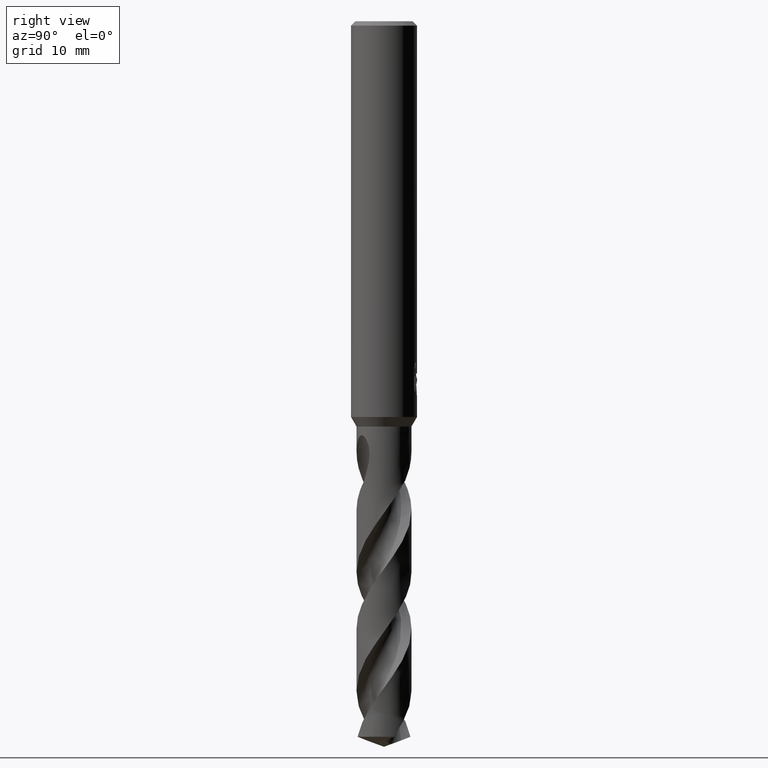
[diagram: clean part render]
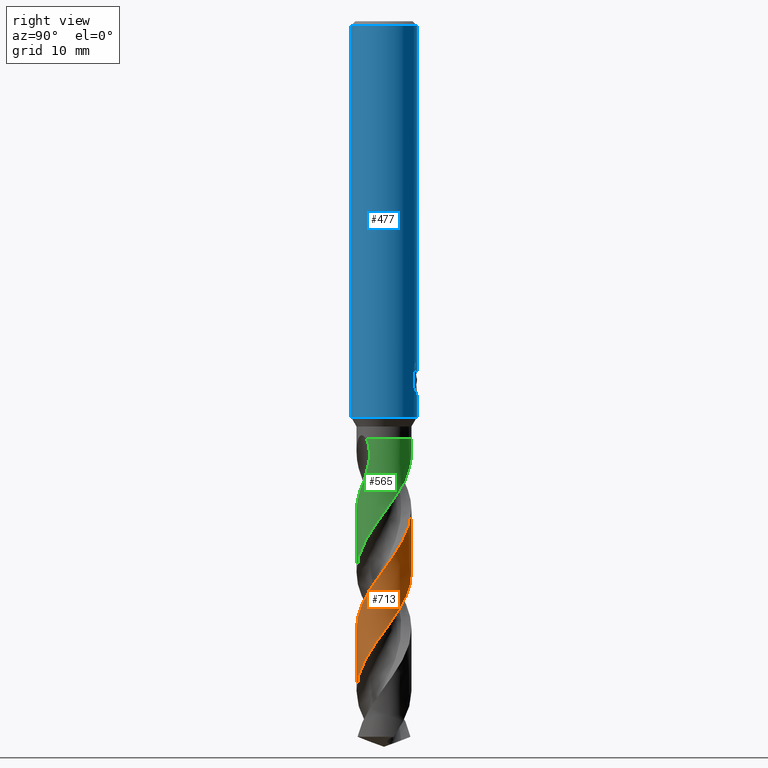
[diagram: same view with three faces highlighted in distinct colors, each labeled with its STEP entity id]
A machine part, right view with three faces highlighted in distinct colors.
Their STEP definitions:

[orange] entity #713 — the highlighted conical surface has half-angle 0 deg.
#307=VERTEX_POINT('',#801);
#373=EDGE_CURVE('',#643,#475,#875,.T.);
#473=VERTEX_POINT('',#985);
#475=VERTEX_POINT('',#987);
#501=EDGE_CURVE('',#473,#475,#1015,.T.);
#513=EDGE_CURVE('',#473,#307,#1028,.T.);
#617=EDGE_CURVE('',#643,#307,#1143,.T.);
#643=VERTEX_POINT('',#1173);
#713=ADVANCED_FACE('',(#1245),#1246,.T.);
#801=CARTESIAN_POINT('',(-4.52282263023623E-014,2.49994476385778,-50.1265623821918));
#875=B_SPLINE_CURVE_WITH_KNOTS('',3,(#2171,#2172,#2173,#2174,#2175,#2176,#2177,#2178,#2179,#2180,#2181,#2182,#2183,#2184,#2185,#2186,#2187,#2188,#2189,#2190,#2191,#2192,#2193,#2194,#2195,#2196,#2197,#2198,#2199,#2200,#2201,#2202,#2203,#2204,#2205,#2206,#2207,#2208,#2209,#2210,#2211,#2212,#2213,#2214,#2215,#2216,#2217,#2218,#2219,#2220,#2221,#2222,#2223,#2224,#2225,#2226,#2227,#2228,#2229,#2230,#2231,#2232,#2233,#2234,#2235,#2236,#2237,#2238,#2239,#2240,#2241,#2242,#2243,#2244,#2245,#2246,#2247,#2248,#2249,#2250,#2251,#2252,#2253,#2254,#2255,#2256),.UNSPECIFIED.,.F.,.F.,(4,2,2,2,2,2,2,2,2,2,2,2,2,2,2,2,2,2,2,2,2,2,2,2,2,2,2,2,2,2,2,2,2,2,2,2,2,2,2,2,2,2,4),(0.0,0.112260864397981,0.184359363803261,0.213399574284535,0.509736657764034,0.611469456130569,0.676074612108671,0.736403610198,0.816753333084748,0.905862270015692,0.994709631882351,1.31016933782621,1.52303416408569,1.74012502638929,1.97225138631104,2.57695872480792,3.17582754790001,5.2809410103534,6.255474968566,6.95390734003384,8.33895150304389,9.04258172192699,9.76890611807947,10.9380614368724,11.458870248475,12.329443972972,13.7401059421701,14.4385569374902,15.8239700963502,16.5270780909587,17.2530806224029,18.3912785393214,19.1171676654268,20.2366143270635,20.8150936857998,21.6680457080309,23.0795614502067,23.7767668551512,25.0346132842892,25.9822451545084,26.6874134462999,27.7659504420145,28.8549960331307),.UNSPECIFIED.);
#985=CARTESIAN_POINT('',(1.49251476546425E-012,-2.4999846378401,-60.9284538668784));
#987=CARTESIAN_POINT('',(5.94388839914862E-014,-2.49996362512359,-55.2360933263023));
#1015=LINE('',#2847,#2848);
#1028=B_SPLINE_CURVE_WITH_KNOTS('',3,(#2877,#2878,#2879,#2880,#2881,#2882,#2883,#2884,#2885,#2886,#2887,#2888,#2889,#2890,#2891,#2892,#2893,#2894,#2895,#2896,#2897,#2898,#2899,#2900,#2901,#2902,#2903,#2904,#2905,#2906,#2907,#2908,#2909,#2910,#2911,#2912,#2913,#2914,#2915,#2916,#2917,#2918,#2919,#2920,#2921,#2922,#2923,#2924,#2925,#2926,#2927,#2928,#2929,#2930,#2931,#2932,#2933,#2934,#2935,#2936,#2937,#2938,#2939,#2940,#2941,#2942,#2943,#2944,#2945,#2946,#2947,#2948,#2949,#2950,#2951,#2952,#2953,#2954,#2955,#2956,#2957,#2958),.UNSPECIFIED.,.F.,.F.,(4,2,2,2,2,2,2,2,2,2,2,2,2,2,2,2,2,2,2,2,2,2,2,2,2,2,2,2,2,2,2,2,2,2,2,2,2,2,2,2,4),(0.0,0.705339197067454,0.793382321139927,2.25138278752314,3.00462328712798,4.43626943265148,4.65154013104783,5.90009963176698,6.6671058830871,7.53581158334608,7.96590050155425,8.69394951695833,10.0801426134938,10.1881721412805,11.6492357720889,12.1945071413989,13.4916434380483,14.0841886344595,15.3916855201915,15.9972169755421,17.3497751212634,18.1393860448176,18.8605143900051,19.3125841918353,20.1058236514083,20.8125461307724,22.2865912593847,23.1269554959695,23.5124698716947,25.8935172841633,26.4819857242191,26.9585591441111,27.5557320804792,27.9155669110931,28.0952590369785,28.1166080844096,28.1413705103888,28.1632492416796,28.1908979290136,28.2479506763335,28.3435305855534),.UNSPECIFIED.);
#1143=LINE('',#3881,#3882);
#1173=CARTESIAN_POINT('',(-4.50061804107274E-014,2.49992374959581,-44.4337831787576));
#1245=FACE_OUTER_BOUND('',#5045,.T.);
#1246=CONICAL_SURFACE('',#5046,2.49995,3.69138890024025E-006);
#2171=CARTESIAN_POINT('',(-1.73763251753517,1.79727657886597,-41.785));
#2172=CARTESIAN_POINT('',(-1.72252333531716,1.81188450975389,-41.8159612488735));
#2173=CARTESIAN_POINT('',(-1.70718617085513,1.82634501856555,-41.8468795146329));
#2174=CARTESIAN_POINT('',(-1.68154298267998,1.84991098373826,-41.897580907247));
#2175=CARTESIAN_POINT('',(-1.67141317876823,1.85906925310798,-41.9173653165301));
#2176=CARTESIAN_POINT('',(-1.65703232954043,1.87185662163627,-41.9450887434018));
#2177=CARTESIAN_POINT('',(-1.6528851984722,1.87551971778129,-41.9530420790741));
#2178=CARTESIAN_POINT('',(-1.60620232636707,1.91647797613241,-42.0420979239649));
#2179=CARTESIAN_POINT('',(-1.56246716797805,1.95234792771077,-42.1210954415223));
#2180=CARTESIAN_POINT('',(-1.50028167347057,1.99978310687406,-42.2279758830858));
#2181=CARTESIAN_POINT('',(-1.48419571490945,2.01175231020023,-42.2551787188422));
#2182=CARTESIAN_POINT('',(-1.45753670999042,2.03109077354861,-42.2996346269278));
#2183=CARTESIAN_POINT('',(-1.44710899817522,2.03853378537185,-42.3168713218699));
#2184=CARTESIAN_POINT('',(-1.42679459870447,2.05279836943604,-42.3501934975608));
#2185=CARTESIAN_POINT('',(-1.41692666331163,2.05962221572898,-42.366265121581));
#2186=CARTESIAN_POINT('',(-1.39377738133427,2.07538472772317,-42.4037411168876));
#2187=CARTESIAN_POINT('',(-1.38046563645428,2.08426304220794,-42.4251198296934));
#2188=CARTESIAN_POINT('',(-1.35220723015523,2.1027204110797,-42.4702394281732));
#2189=CARTESIAN_POINT('',(-1.33726269701465,2.11225587310889,-42.4939484197089));
#2190=CARTESIAN_POINT('',(-1.3072564298652,2.13095660652669,-42.5413850381339));
#2191=CARTESIAN_POINT('',(-1.29232449782342,2.14004504860097,-42.5649268475504));
#2192=CARTESIAN_POINT('',(-1.22332005298629,2.18105409025878,-42.6736537518755));
#2193=CARTESIAN_POINT('',(-1.1686119397487,2.21082703703966,-42.7594024169131));
#2194=CARTESIAN_POINT('',(-1.07590408053925,2.25693625153703,-42.9026979907032));
#2195=CARTESIAN_POINT('',(-1.03811787139033,2.27456344180679,-42.9605691828696));
#2196=CARTESIAN_POINT('',(-0.960985511359174,2.308225764917,-43.0773163560093));
#2197=CARTESIAN_POINT('',(-0.921551483904369,2.32425367032093,-43.1362986554134));
#2198=CARTESIAN_POINT('',(-0.839004025607875,2.35536562401067,-43.2581045465728));
#2199=CARTESIAN_POINT('',(-0.796090888532881,2.37021423757732,-43.3204323116492));
#2200=CARTESIAN_POINT('',(-0.639376534975514,2.41969056288015,-43.5458807467084));
#2201=CARTESIAN_POINT('',(-0.523769726785364,2.4473157517187,-43.7080488747472));
#2202=CARTESIAN_POINT('',(-0.290712061321603,2.48574152964552,-44.0324353282882));
#2203=CARTESIAN_POINT('',(-0.173728399406881,2.49663090714221,-44.1943179046256));
#2204=CARTESIAN_POINT('',(0.355258969957849,2.50860697346788,-44.9235593870129));
#2205=CARTESIAN_POINT('',(0.76351808274427,2.41600035035728,-45.4815312945286));
#2206=CARTESIAN_POINT('',(1.30197299347946,2.1426697811221,-46.31106381553));
#2207=CARTESIAN_POINT('',(1.46172325610689,2.03700617845406,-46.573145334837));
#2208=CARTESIAN_POINT('',(1.71242825474656,1.82645486217131,-47.0241990339206));
#2209=CARTESIAN_POINT('',(1.80979503284007,1.73004530276872,-47.2121272242569));
#2210=CARTESIAN_POINT('',(2.07544703988881,1.41982938343384,-47.7733523730699));
#2211=CARTESIAN_POINT('',(2.21720066386726,1.18628887309635,-48.1441944867819));
#2212=CARTESIAN_POINT('',(2.37014142484875,0.806917128396147,-48.7071592389239));
#2213=CARTESIAN_POINT('',(2.41103927264376,0.674999637538866,-48.8963335641817));
#2214=CARTESIAN_POINT('',(2.47163657854173,0.401250805539074,-49.2814895665421));
#2215=CARTESIAN_POINT('',(2.49045213073503,0.259951390782246,-49.4767087971323));
#2216=CARTESIAN_POINT('',(2.50795736213588,-0.110676779446218,-49.9877567146545));
#2217=CARTESIAN_POINT('',(2.48731984448235,-0.339900941854813,-50.3015001586411));
#2218=CARTESIAN_POINT('',(2.41265118995953,-0.662782316827547,-50.7567138613136));
#2219=CARTESIAN_POINT('',(2.38358285035791,-0.760708160842329,-50.8967340635618));
#2220=CARTESIAN_POINT('',(2.29020920139356,-1.01674147264556,-51.2718526106045));
#2221=CARTESIAN_POINT('',(2.21552212654012,-1.17061022199388,-51.506378327884));
#2222=CARTESIAN_POINT('',(1.98019957447149,-1.55081325593043,-52.1212928143052));
#2223=CARTESIAN_POINT('',(1.79673707470065,-1.76006050820629,-52.4982066654968));
#2224=CARTESIAN_POINT('',(1.4770632193138,-2.02157595960438,-53.0669998680844));
#2225=CARTESIAN_POINT('',(1.36419782506063,-2.09940615047098,-53.2550031617408));
#2226=CARTESIAN_POINT('',(1.00986821521097,-2.30299156464392,-53.8165632951909));
#2227=CARTESIAN_POINT('',(0.75390861783778,-2.39897411173886,-54.1877323401761));
#2228=CARTESIAN_POINT('',(0.352637911157766,-2.47879544892285,-54.7508913923925));
#2229=CARTESIAN_POINT('',(0.215473377630436,-2.49447489579981,-54.9400033942706));
#2230=CARTESIAN_POINT('',(-0.0647164143704662,-2.50318029125977,-55.3250706851135));
#2231=CARTESIAN_POINT('',(-0.207048247494991,-2.49542970968005,-55.5202326259576));
#2232=CARTESIAN_POINT('',(-0.56858039697824,-2.44463391380991,-56.0230316144241));
#2233=CARTESIAN_POINT('',(-0.784379149224132,-2.38420746294383,-56.3287322025186));
#2234=CARTESIAN_POINT('',(-1.12021046051182,-2.23947641372666,-56.8310641184024));
#2235=CARTESIAN_POINT('',(-1.24581739234765,-2.17209685378461,-57.026199561421));
#2236=CARTESIAN_POINT('',(-1.54863283957287,-1.97475894813139,-57.5239715787508));
#2237=CARTESIAN_POINT('',(-1.71594996590589,-1.83128955046827,-57.8247579501289));
#2238=CARTESIAN_POINT('',(-1.93817520512301,-1.58310863870926,-58.2823826923513));
#2239=CARTESIAN_POINT('',(-2.00798844882317,-1.49355720431913,-58.4379139467633));
#2240=CARTESIAN_POINT('',(-2.16505013784096,-1.26110534007432,-58.8240279284813));
#2241=CARTESIAN_POINT('',(-2.24454505612968,-1.1135009377857,-59.0539622265998));
#2242=CARTESIAN_POINT('',(-2.41489958907924,-0.703405976010952,-59.6647036802505));
#2243=CARTESIAN_POINT('',(-2.4778493408574,-0.432023431613768,-60.0418923222221));
#2244=CARTESIAN_POINT('',(-2.503634884442,-0.0196933934571156,-60.6109144041946));
#2245=CARTESIAN_POINT('',(-2.50097886871375,0.117197858275783,-60.7987195120287));
#2246=CARTESIAN_POINT('',(-2.46212169587073,0.498783927950691,-61.3258934336175));
#2247=CARTESIAN_POINT('',(-2.40091599944267,0.739127207484304,-61.663113178621));
#2248=CARTESIAN_POINT('',(-2.23381939159023,1.13775665563353,-62.2581594994216));
#2249=CARTESIAN_POINT('',(-2.14310945923877,1.3006262674841,-62.5127378027975));
#2250=CARTESIAN_POINT('',(-1.95469301279321,1.56470195363854,-62.958274586715));
#2251=CARTESIAN_POINT('',(-1.8651832026667,1.67036731294681,-63.1480903354741));
#2252=CARTESIAN_POINT('',(-1.61814650352558,1.91733878379423,-63.6295195013268));
#2253=CARTESIAN_POINT('',(-1.45028454623987,2.04730432859257,-63.9195889522927));
#2254=CARTESIAN_POINT('',(-1.08365734352574,2.26304112295259,-64.5040157661129));
#2255=CARTESIAN_POINT('',(-0.88633245956452,2.34735393691689,-64.7963888538523));
#2256=CARTESIAN_POINT('',(-0.680722000651791,2.40553893292721,-65.0900744143345));
#2847=CARTESIAN_POINT('',(3.05947284464402E-016,-2.49995,-51.5450372071672));
#2848=VECTOR('',#5477,1.0);
#2877=CARTESIAN_POINT('',(-2.33886570378176,-0.883010316855671,-65.0900744143346));
#2878=CARTESIAN_POINT('',(-2.29018651941373,-1.01194688165468,-64.899591205298));
#2879=CARTESIAN_POINT('',(-2.23092460497212,-1.13665062971624,-64.7100951296172));
#2880=CARTESIAN_POINT('',(-2.1530246992714,-1.27073593403021,-64.4959070600355));
#2881=CARTESIAN_POINT('',(-2.14422075936886,-1.28553609920864,-64.4721112545271));
#2882=CARTESIAN_POINT('',(-1.98678778498846,-1.54406599633667,-64.0543117839365));
#2883=CARTESIAN_POINT('',(-1.7976549868061,-1.76071742978131,-63.6691206233433));
#2884=CARTESIAN_POINT('',(-1.46106991761269,-2.03397333262025,-63.0729881102762));
#2885=CARTESIAN_POINT('',(-1.33871349423607,-2.11648751129627,-62.8683680607111));
#2886=CARTESIAN_POINT('',(-0.964657660492261,-2.32332210861559,-62.2793324202098));
#2887=CARTESIAN_POINT('',(-0.698973713689662,-2.41647371340849,-61.9016577222645));
#2888=CARTESIAN_POINT('',(-0.382407781231478,-2.47092292387326,-61.4573907860452));
#2889=CARTESIAN_POINT('',(-0.340868195840411,-2.47699755069347,-61.3992154232817));
#2890=CARTESIAN_POINT('',(-0.056348433135587,-2.51127396344896,-61.0033000692642));
#2891=CARTESIAN_POINT('',(0.189607553031624,-2.50481686222219,-60.6711730976838));
#2892=CARTESIAN_POINT('',(0.579560574119715,-2.43653722360843,-60.1276139254984));
#2893=CARTESIAN_POINT('',(0.72494026829224,-2.39726246546098,-59.9193957858108));
#2894=CARTESIAN_POINT('',(1.02504655634025,-2.28649069645021,-59.4782941951181));
#2895=CARTESIAN_POINT('',(1.17828835600058,-2.21147233878619,-59.2460040832562));
#2896=CARTESIAN_POINT('',(1.39462177848924,-2.07654618220098,-58.8966113737013));
#2897=CARTESIAN_POINT('',(1.46383890757014,-2.02833508442498,-58.7810628734268));
#2898=CARTESIAN_POINT('',(1.64305173694417,-1.88959207455748,-58.4689934029809));
#2899=CARTESIAN_POINT('',(1.7480041829164,-1.79295929273067,-58.271490477962));
#2900=CARTESIAN_POINT('',(2.02765337381636,-1.48736283540185,-57.7016448403498));
#2901=CARTESIAN_POINT('',(2.17675215974187,-1.2588531611843,-57.3352544267904));
#2902=CARTESIAN_POINT('',(2.29468417630767,-0.992329559019766,-56.9318510739895));
#2903=CARTESIAN_POINT('',(2.30295054965085,-0.97299133897287,-56.9026920016989));
#2904=CARTESIAN_POINT('',(2.41974444841605,-0.68991523508859,-56.4788123552638));
#2905=CARTESIAN_POINT('',(2.4827461711198,-0.409412690495787,-56.0928565758128));
#2906=CARTESIAN_POINT('',(2.50218422872534,-0.0171166163841849,-55.5527197643311));
#2907=CARTESIAN_POINT('',(2.50061848827988,0.0894609548753868,-55.4051585521973));
#2908=CARTESIAN_POINT('',(2.47258558300501,0.447144106676024,-54.909605765415));
#2909=CARTESIAN_POINT('',(2.4148013680497,0.694737030915162,-54.5668861005288));
#2910=CARTESIAN_POINT('',(2.27760108182114,1.03716435036888,-54.0599008925659));
#2911=CARTESIAN_POINT('',(2.22728008054499,1.14115918632063,-53.9000618284899));
#2912=CARTESIAN_POINT('',(2.04420851600865,1.46130061996071,-53.390712037741));
#2913=CARTESIAN_POINT('',(1.88533901313571,1.66131855510462,-53.0464639324678));
#2914=CARTESIAN_POINT('',(1.61227982878016,1.91421004200908,-52.5348963107895));
#2915=CARTESIAN_POINT('',(1.52051473189964,1.9878476797528,-52.3720603472176));
#2916=CARTESIAN_POINT('',(1.20901208157233,2.20376702993984,-51.8487820122252));
#2917=CARTESIAN_POINT('',(0.971688557130232,2.31825566416415,-51.4941662036529));
#2918=CARTESIAN_POINT('',(0.574074081387713,2.43795087913269,-50.9228469333753));
#2919=CARTESIAN_POINT('',(0.423951345468637,2.46849021318531,-50.7108135997946));
#2920=CARTESIAN_POINT('',(0.132737446093259,2.50033233182608,-50.3078546606294));
#2921=CARTESIAN_POINT('',(-0.00744624843985667,2.50385953433475,-50.1166243972868));
#2922=CARTESIAN_POINT('',(-0.235072303680106,2.49041743578429,-49.804154112705));
#2923=CARTESIAN_POINT('',(-0.322300937021889,2.48062603910392,-49.6839194969346));
#2924=CARTESIAN_POINT('',(-0.560271952156856,2.4411909636006,-49.3516434524049));
#2925=CARTESIAN_POINT('',(-0.709375224730758,2.40213008065173,-49.1384821213758));
#2926=CARTESIAN_POINT('',(-0.98317152774021,2.30258834019788,-48.7380818490494));
#2927=CARTESIAN_POINT('',(-1.10817670215267,2.24511367155772,-48.5504571866369));
#2928=CARTESIAN_POINT('',(-1.4776600538367,2.0367646061557,-47.9688885383383));
#2929=CARTESIAN_POINT('',(-1.70122474260381,1.85412109082809,-47.5737327089783));
#2930=CARTESIAN_POINT('',(-1.99616335626811,1.51384661083037,-46.9566524289922));
#2931=CARTESIAN_POINT('',(-2.09065772907504,1.38033475722806,-46.7341315470007));
#2932=CARTESIAN_POINT('',(-2.20836769235021,1.17403016729757,-46.4065933733178));
#2933=CARTESIAN_POINT('',(-2.24235575534413,1.10771172241147,-46.3032037168182));
#2934=CARTESIAN_POINT('',(-2.46440497019878,0.622373707279598,-45.5649438217405));
#2935=CARTESIAN_POINT('',(-2.53689484101531,0.15942215533147,-44.9506343893688));
#2936=CARTESIAN_POINT('',(-2.46865486738844,-0.410223194938036,-44.1590448383229));
#2937=CARTESIAN_POINT('',(-2.44753224229699,-0.521604767257759,-44.0012674652668));
#2938=CARTESIAN_POINT('',(-2.39566460204549,-0.720306041270175,-43.7181079108659));
#2939=CARTESIAN_POINT('',(-2.367409825996,-0.808501262630983,-43.5917896803095));
#2940=CARTESIAN_POINT('',(-2.2921215634324,-1.00470770934608,-43.308547468957));
#2941=CARTESIAN_POINT('',(-2.24349532738679,-1.10898136845446,-43.1578285819941));
#2942=CARTESIAN_POINT('',(-2.15326583726819,-1.27198428116621,-42.8993481075791));
#2943=CARTESIAN_POINT('',(-2.1175666436352,-1.33039309085748,-42.8017300139555));
#2944=CARTESIAN_POINT('',(-2.06214467795192,-1.41359606396385,-42.6525047179898));
#2945=CARTESIAN_POINT('',(-2.04345011854873,-1.44046235586593,-42.6025385631179));
#2946=CARTESIAN_POINT('',(-2.02233273510932,-1.46961519980199,-42.5461035415484));
#2947=CARTESIAN_POINT('',(-2.01551642420652,-1.47903259207708,-42.5277380610302));
#2948=CARTESIAN_POINT('',(-1.99471950686108,-1.5069926528753,-42.4744216398202));
#2949=CARTESIAN_POINT('',(-1.98318630155062,-1.52214706326465,-42.4460597634404));
#2950=CARTESIAN_POINT('',(-1.96067864081638,-1.55100453566303,-42.3930469474543));
#2951=CARTESIAN_POINT('',(-1.94981519695124,-1.56464560566354,-42.3683950926759));
#2952=CARTESIAN_POINT('',(-1.92446653391734,-1.59577896060922,-42.3130159374346));
#2953=CARTESIAN_POINT('',(-1.90981001707499,-1.61330353828892,-42.2824627816051));
#2954=CARTESIAN_POINT('',(-1.86321241132956,-1.66743255269772,-42.1898301555769));
#2955=CARTESIAN_POINT('',(-1.82964914944576,-1.7043004560509,-42.1291412409542));
#2956=CARTESIAN_POINT('',(-1.73317511116033,-1.80366253559055,-41.9703392436052));
#2957=CARTESIAN_POINT('',(-1.66656418716018,-1.86580910510559,-41.8759866470075));
#2958=CARTESIAN_POINT('',(-1.59301279645432,-1.9266240155434,-41.785));
#3881=CARTESIAN_POINT('',(-3.06343646383248E-016,2.49995,-51.5450372071672));
#3882=VECTOR('',#5645,1.0);
#5045=EDGE_LOOP('',(#5732,#5733,#5734,#5735));
#5046=AXIS2_PLACEMENT_3D('',#5736,#5737,#5738);
#5477=DIRECTION('',(-4.52049830165335E-022,3.69138890023187E-006,0.999999999993187));
#5645=DIRECTION('',(-4.52049830165335E-022,3.69138890023187E-006,-0.999999999993187));
#5732=ORIENTED_EDGE('',*,*,#617,.F.);
#5733=ORIENTED_EDGE('',*,*,#373,.T.);
#5734=ORIENTED_EDGE('',*,*,#501,.F.);
#5735=ORIENTED_EDGE('',*,*,#513,.T.);
#5736=CARTESIAN_POINT('',(0.0,0.0,-51.5450372071672));
#5737=DIRECTION('',(0.0,-0.0,-1.0));
#5738=DIRECTION('',(0.0,1.0,0.0));

[blue] entity #477 — the highlighted cylindrical surface (edge-blend (fillet) strip) has radius 3 mm, axis along (-0, -0, 1).
#287=VERTEX_POINT('',#779);
#299=EDGE_CURVE('',#485,#301,#793,.T.);
#301=VERTEX_POINT('',#795);
#327=VERTEX_POINT('',#822);
#377=VERTEX_POINT('',#879);
#381=VERTEX_POINT('',#884);
#385=EDGE_CURVE('',#449,#401,#888,.T.);
#401=VERTEX_POINT('',#906);
#405=EDGE_CURVE('',#717,#515,#910,.T.);
#449=VERTEX_POINT('',#958);
#451=EDGE_CURVE('',#287,#717,#960,.T.);
#463=EDGE_CURVE('',#377,#301,#974,.T.);
#477=ADVANCED_FACE('',(#989),#990,.T.);
#485=VERTEX_POINT('',#998);
#515=VERTEX_POINT('',#1030);
#531=EDGE_CURVE('',#687,#485,#1048,.T.);
#557=VERTEX_POINT('',#1075);
#573=EDGE_CURVE('',#381,#287,#1093,.T.);
#595=EDGE_CURVE('',#377,#401,#1118,.T.);
#601=EDGE_CURVE('',#557,#381,#1125,.T.);
#645=EDGE_CURVE('',#515,#687,#1175,.T.);
#685=EDGE_CURVE('',#327,#449,#1217,.T.);
#687=VERTEX_POINT('',#1219);
#691=EDGE_CURVE('',#557,#327,#1223,.T.);
#717=VERTEX_POINT('',#1250);
#779=CARTESIAN_POINT('',(0.873560781758957,2.86999852971612,-32.3198931596091));
#793=B_SPLINE_CURVE_WITH_KNOTS('',3,(#1627,#1628,#1629,#1630,#1631,#1632,#1633,#1634,#1635,#1636,#1637,#1638,#1639,#1640,#1641,#1642,#1643,#1644,#1645,#1646,#1647,#1648,#1649,#1650,#1651,#1652,#1653),.UNSPECIFIED.,.F.,.F.,(4,2,3,2,2,2,2,2,2,2,2,2,4),(-0.54422824842136,-0.27211412421068,0.0,0.272114124210678,0.544228248421357,0.817906359646673,1.09158447087199,1.36255924571499,1.63353402055798,1.90530456554772,2.17707511053746,2.4488456555272,2.72061620051693),.UNSPECIFIED.);
#795=CARTESIAN_POINT('',(-1.20768269592175E-015,3.0,-32.0232688117743));
#822=CARTESIAN_POINT('',(0.0,3.0,-36.0));
#879=CARTESIAN_POINT('',(0.0,3.0,-0.399999999999999));
#884=CARTESIAN_POINT('',(0.29010312703583,2.98594041730307,-33.9998328990228));
#888=LINE('',#2357,#2358);
#906=CARTESIAN_POINT('',(3.67381906146713E-016,-3.0,-0.399999999999999));
#910=B_SPLINE_CURVE_WITH_KNOTS('',3,(#2400,#2401,#2402,#2403,#2404,#2405,#2406,#2407),.UNSPECIFIED.,.F.,.F.,(4,2,2,4),(8.17446522132897,8.48751487521068,8.80056452909238,9.43014514523744),.UNSPECIFIED.);
#958=CARTESIAN_POINT('',(3.67381906146713E-016,-3.0,-36.0));
#960=LINE('',#2668,#2669);
#974=LINE('',#2694,#2695);
#989=FACE_OUTER_BOUND('',#2715,.T.);
#990=CYLINDRICAL_SURFACE('',#2716,3.0);
#998=CARTESIAN_POINT('',(0.799431726384364,2.89152363207533,-31.000000276873));
#1030=CARTESIAN_POINT('',(1.33721006514658,2.68549236485056,-33.2901657003257));
#1048=B_SPLINE_CURVE_WITH_KNOTS('',3,(#2984,#2985,#2986,#2987,#2988,#2989,#2990,#2991),.UNSPECIFIED.,.F.,.F.,(4,2,2,4),(0.629580638580865,1.25916127716173,1.57221094126725,1.88526060537277),.UNSPECIFIED.);
#1075=CARTESIAN_POINT('',(-2.46407913303377E-016,3.0,-34.0310253601033));
#1093=ELLIPSE('',#3095,9.14398372010932,3.0);
#1118=CIRCLE('',#3834,3.0);
#1125=B_SPLINE_CURVE_WITH_KNOTS('',3,(#3843,#3844,#3845,#3846,#3847,#3848,#3849,#3850,#3851,#3852,#3853,#3854,#3855,#3856,#3857,#3858),.UNSPECIFIED.,.F.,.F.,(4,2,2,2,2,2,2,4),(5.66023402257373,6.29060333517104,6.60504483258975,6.91948633000846,7.23392782742717,7.54836932484587,7.86141901111221,8.17446869737855),.UNSPECIFIED.);
#1175=LINE('',#4043,#4044);
#1217=CIRCLE('',#4887,3.0);
#1219=CARTESIAN_POINT('',(1.33721006514658,2.68549236485057,-31.5150484364821));
#1223=LINE('',#4894,#4895);
#1250=CARTESIAN_POINT('',(0.873560781758956,2.86999852971612,-33.7587351791531));
#1627=CARTESIAN_POINT('',(0.665621182276714,2.92522622060321,-30.8140957881762));
#1628=CARTESIAN_POINT('',(0.728850563417096,2.91083867849353,-30.877518087557));
#1629=CARTESIAN_POINT('',(0.783900459387161,2.89602337967411,-30.9578702196133));
#1630=CARTESIAN_POINT('',(0.857188692916628,2.87518328740958,-31.1345580124299));
#1631=CARTESIAN_POINT('',(0.875400981188567,2.86943777108584,-31.2309373045166));
#1632=CARTESIAN_POINT('',(0.875400981188567,2.86943777108584,-31.3216420125868));
#1633=CARTESIAN_POINT('',(0.875400981188567,2.86943777108584,-31.412346720657));
#1634=CARTESIAN_POINT('',(0.857188692916629,2.87518328740958,-31.5087260127437));
#1635=CARTESIAN_POINT('',(0.783900459387161,2.89602337967411,-31.6854138055602));
#1636=CARTESIAN_POINT('',(0.728850563417096,2.91083867849353,-31.7657659376165));
#1637=CARTESIAN_POINT('',(0.60202838769231,2.93969645569731,-31.8929750586276));
#1638=CARTESIAN_POINT('',(0.5214778595293,2.95568533572518,-31.9483797636259));
#1639=CARTESIAN_POINT('',(0.34429909105015,2.98152194310932,-32.0221641076746));
#1640=CARTESIAN_POINT('',(0.247628172090375,2.99115403786358,-32.0405166027747));
#1641=CARTESIAN_POINT('',(0.0663244946631877,3.00062654348629,-32.0405166027747));
#1642=CARTESIAN_POINT('',(-0.0299285908853379,3.00115720326599,-32.0224875186921));
#1643=CARTESIAN_POINT('',(-0.206881310600538,2.99416773126077,-31.949244373347));
#1644=CARTESIAN_POINT('',(-0.287593937381961,2.98687212067831,-31.8940404490632));
#1645=CARTESIAN_POINT('',(-0.415200117492864,2.97182576996222,-31.7666805419979));
#1646=CARTESIAN_POINT('',(-0.470604049431396,2.96309385107775,-31.6859121102136));
#1647=CARTESIAN_POINT('',(-0.544183869965539,2.95046729924835,-31.5086992019516));
#1648=CARTESIAN_POINT('',(-0.562348199187247,2.94682278104247,-31.41223219425));
#1649=CARTESIAN_POINT('',(-0.562348199187247,2.94682278104247,-31.2310518309235));
#1650=CARTESIAN_POINT('',(-0.54418386996554,2.95046729924835,-31.134584823222));
#1651=CARTESIAN_POINT('',(-0.4706040494314,2.96309385107775,-30.95737191496));
#1652=CARTESIAN_POINT('',(-0.415200117492863,2.97182576996222,-30.8766034831756));
#1653=CARTESIAN_POINT('',(-0.351303479704285,2.97935997575782,-30.812830162452));
#2357=CARTESIAN_POINT('',(3.67381906146713E-016,-3.0,-18.2));
#2358=VECTOR('',#5332,1.0);
#2400=CARTESIAN_POINT('',(0.600330703923335,2.93932016730517,-33.9050364278969));
#2401=CARTESIAN_POINT('',(0.700343038443484,2.91889351228921,-33.8631861412044));
#2402=CARTESIAN_POINT('',(0.795685584213131,2.8940165604303,-33.8114119954011));
#2403=CARTESIAN_POINT('',(0.971352589628262,2.83988055167306,-33.692706383359));
#2404=CARTESIAN_POINT('',(1.0516835476539,2.81066216129401,-33.6257659914415));
#2405=CARTESIAN_POINT('',(1.26543925920527,2.72440179743877,-33.4122346680481));
#2406=CARTESIAN_POINT('',(1.3899740959159,2.66030349847411,-33.2319488826214));
#2407=CARTESIAN_POINT('',(1.47371594109741,2.61307507066968,-33.0321377817991));
#2668=CARTESIAN_POINT('',(0.873560781758957,2.86999852971612,-33.0393141693811));
#2669=VECTOR('',#5401,1.0);
#2694=CARTESIAN_POINT('',(-3.67381906146713E-016,3.0,-18.2));
#2695=VECTOR('',#5424,1.0);
#2715=EDGE_LOOP('',(#5445,#5446,#5447,#5448,#5449,#5450,#5451,#5452,#5453,#5454,#5455,#5456));
#2716=AXIS2_PLACEMENT_3D('',#5457,#5458,#5459);
#2984=CARTESIAN_POINT('',(1.47371594887933,2.61307506628086,-31.7730763684241));
#2985=CARTESIAN_POINT('',(1.38997410067862,2.66030349611674,-31.5732652606136));
#2986=CARTESIAN_POINT('',(1.2654392594963,2.72440179761724,-31.3929794688919));
#2987=CARTESIAN_POINT('',(1.05168354029617,2.81066216411606,-31.1794481382038));
#2988=CARTESIAN_POINT('',(0.971352579549231,2.83988055521709,-31.1125077441098));
#2989=CARTESIAN_POINT('',(0.795685568183073,2.89401656493242,-30.9938021282019));
#2990=CARTESIAN_POINT('',(0.700343019183212,2.91889351702519,-30.9420279807093));
#2991=CARTESIAN_POINT('',(0.600330681290245,2.93932017192779,-30.9001776926585));
#3095=AXIS2_PLACEMENT_3D('',#5562,#5563,#5564);
#3834=AXIS2_PLACEMENT_3D('',#5592,#5593,#5594);
#3843=CARTESIAN_POINT('',(-1.53050642192579,2.58022287650581,-33.0319811255889));
#3844=CARTESIAN_POINT('',(-1.44691631248335,2.62980577312329,-33.2314887010961));
#3845=CARTESIAN_POINT('',(-1.32276760444366,2.69707077181617,-33.4113258593841));
#3846=CARTESIAN_POINT('',(-1.10973155101076,2.78826898930335,-33.6245951706909));
#3847=CARTESIAN_POINT('',(-1.02948996220254,2.81934349084513,-33.6916117853674));
#3848=CARTESIAN_POINT('',(-0.853932698223484,2.87738531454781,-33.8105216600777));
#3849=CARTESIAN_POINT('',(-0.758609991487907,2.90431263574779,-33.8624240602539));
#3850=CARTESIAN_POINT('',(-0.558469552260235,2.94934446690523,-33.9464055954533));
#3851=CARTESIAN_POINT('',(-0.453457041446381,2.96746268462387,-33.9785511641911));
#3852=CARTESIAN_POINT('',(-0.240810292537893,2.99223469602914,-34.0209924679526));
#3853=CARTESIAN_POINT('',(-0.133171317626829,2.99887501234033,-34.0312723335086));
#3854=CARTESIAN_POINT('',(0.0759830626177195,3.00085245803086,-34.0312723335086));
#3855=CARTESIAN_POINT('',(0.183273473896684,2.99629272230549,-34.0210815541729));
#3856=CARTESIAN_POINT('',(0.39543915272815,2.97573303917486,-33.9788816901513));
#3857=CARTESIAN_POINT('',(0.500318639064909,2.95974677710468,-33.9468871509919));
#3858=CARTESIAN_POINT('',(0.600330982089903,2.93932011049205,-33.9050368602192));
#4043=CARTESIAN_POINT('',(1.33721006514658,2.68549236485056,-32.4026070684039));
#4044=VECTOR('',#5687,1.0);
#4887=AXIS2_PLACEMENT_3D('',#5719,#5720,#5721);
#4894=CARTESIAN_POINT('',(-3.67381906146713E-016,3.0,-18.2));
#4895=VECTOR('',#5722,1.0);
#5332=DIRECTION('',(-0.0,-0.0,1.0));
#5401=DIRECTION('',(0.0,0.0,-1.0));
#5424=DIRECTION('',(0.0,0.0,-1.0));
#5445=ORIENTED_EDGE('',*,*,#463,.F.);
#5446=ORIENTED_EDGE('',*,*,#595,.T.);
#5447=ORIENTED_EDGE('',*,*,#385,.F.);
#5448=ORIENTED_EDGE('',*,*,#685,.F.);
#5449=ORIENTED_EDGE('',*,*,#691,.F.);
#5450=ORIENTED_EDGE('',*,*,#601,.T.);
#5451=ORIENTED_EDGE('',*,*,#573,.T.);
#5452=ORIENTED_EDGE('',*,*,#451,.T.);
#5453=ORIENTED_EDGE('',*,*,#405,.T.);
#5454=ORIENTED_EDGE('',*,*,#645,.T.);
#5455=ORIENTED_EDGE('',*,*,#531,.T.);
#5456=ORIENTED_EDGE('',*,*,#299,.T.);
#5457=CARTESIAN_POINT('',(0.0,0.0,-18.2));
#5458=DIRECTION('',(-0.0,-0.0,1.0));
#5459=DIRECTION('',(0.0,1.0,0.0));
#5562=CARTESIAN_POINT('',(0.0,0.0,-34.8351219173269));
#5563=DIRECTION('',(0.944648353914092,0.0,-0.328084573619969));
#5564=DIRECTION('',(0.328084573619969,-0.0,0.944648353914092));
#5592=CARTESIAN_POINT('',(0.0,0.0,-0.399999999999999));
#5593=DIRECTION('',(0.0,0.0,-1.0));
#5594=DIRECTION('',(0.0,1.0,0.0));
#5687=DIRECTION('',(-0.0,-0.0,1.0));
#5719=CARTESIAN_POINT('',(0.0,0.0,-36.0));
#5720=DIRECTION('',(0.0,0.0,-1.0));
#5721=DIRECTION('',(0.0,1.0,0.0));
#5722=DIRECTION('',(0.0,0.0,-1.0));

[green] entity #565 — the highlighted conical surface has half-angle 0 deg.
#285=VERTEX_POINT('',#777);
#325=VERTEX_POINT('',#820);
#333=EDGE_CURVE('',#495,#551,#829,.T.);
#351=VERTEX_POINT('',#849);
#357=VERTEX_POINT('',#857);
#459=EDGE_CURVE('',#641,#495,#970,.T.);
#467=EDGE_CURVE('',#285,#357,#978,.T.);
#489=EDGE_CURVE('',#551,#351,#1002,.T.);
#495=VERTEX_POINT('',#1008);
#551=VERTEX_POINT('',#1069);
#565=ADVANCED_FACE('',(#1083),#1084,.T.);
#589=VERTEX_POINT('',#1112);
#633=EDGE_CURVE('',#325,#589,#1162,.T.);
#641=VERTEX_POINT('',#1171);
#673=EDGE_CURVE('',#285,#641,#1205,.T.);
#709=EDGE_CURVE('',#325,#351,#1241,.T.);
#715=EDGE_CURVE('',#589,#357,#1248,.T.);
#777=CARTESIAN_POINT('',(-3.05956767359927E-016,2.4999,-38.0));
#820=CARTESIAN_POINT('',(4.41179954747735E-014,-2.49994476385777,-50.1265623821918));
#829=B_SPLINE_CURVE_WITH_KNOTS('',3,(#1787,#1788,#1789,#1790),.UNSPECIFIED.,.F.,.F.,(4,4),(0.0,1.43665684845065),.UNSPECIFIED.);
#849=CARTESIAN_POINT('',(5.67745366687904E-014,-2.49992374959582,-44.4337831787576));
#857=CARTESIAN_POINT('',(-7.41226847575829E-013,2.4999041622737,-39.1275630436533));
#970=B_SPLINE_CURVE_WITH_KNOTS('',3,(#2681,#2682,#2683,#2684,#2685,#2686,#2687,#2688),.UNSPECIFIED.,.F.,.F.,(4,2,2,4),(0.0,0.466804786851117,1.12021701218009,1.74699842426497),.UNSPECIFIED.);
#978=LINE('',#2700,#2701);
#1002=B_SPLINE_CURVE_WITH_KNOTS('',3,(#2730,#2731,#2732,#2733,#2734,#2735,#2736,#2737,#2738,#2739,#2740,#2741,#2742,#2743,#2744,#2745,#2746,#2747,#2748,#2749,#2750,#2751,#2752,#2753,#2754,#2755,#2756,#2757,#2758,#2759,#2760,#2761,#2762,#2763,#2764,#2765,#2766,#2767,#2768,#2769,#2770,#2771,#2772,#2773,#2774,#2775,#2776,#2777,#2778,#2779,#2780,#2781,#2782,#2783,#2784,#2785,#2786,#2787,#2788,#2789,#2790,#2791,#2792,#2793,#2794,#2795,#2796,#2797,#2798,#2799,#2800,#2801,#2802,#2803,#2804,#2805,#2806,#2807,#2808,#2809,#2810,#2811,#2812,#2813,#2814,#2815),.UNSPECIFIED.,.F.,.F.,(4,2,2,2,2,2,2,2,2,2,2,2,2,2,2,2,2,2,2,2,2,2,2,2,2,2,2,2,2,2,2,2,2,2,2,2,2,2,2,2,2,2,4),(0.0,0.112260864502837,0.184359362821101,0.213399574215006,0.509736657349901,0.611469455569257,0.67607461145284,0.736403609462447,0.816753332257204,0.905862269064934,0.994709630813049,1.31016933640133,1.52303416237699,1.74012502438616,1.97225138451341,2.5769587221793,3.17582755069472,5.28094098818037,6.25547495015863,6.95390732003399,8.33895148310456,9.04258170054827,9.76890609568415,10.9380613977759,11.4588702272129,12.329443947901,13.7401059158146,14.4385569099418,15.8239700677305,16.527078061405,17.2530805918108,18.3912785093684,19.1171676344524,20.2366142849576,20.8150936552939,21.6680456775689,23.0795614175122,23.7767668212789,25.034613248438,25.982245117534,26.6874134085245,27.7659504028113,28.8549959927232),.UNSPECIFIED.);
#1008=CARTESIAN_POINT('',(2.03401822218082,-1.45338036163872,-40.4161889313329));
#1069=CARTESIAN_POINT('',(1.73763251753517,-1.79727657886597,-41.785));
#1083=FACE_OUTER_BOUND('',#3068,.T.);
#1084=CONICAL_SURFACE('',#3069,2.49995,3.69138890024025E-006);
#1112=CARTESIAN_POINT('',(1.59301279645432,1.9266240155434,-41.785));
#1162=B_SPLINE_CURVE_WITH_KNOTS('',3,(#3930,#3931,#3932,#3933,#3934,#3935,#3936,#3937,#3938,#3939,#3940,#3941,#3942,#3943,#3944,#3945,#3946,#3947,#3948,#3949,#3950,#3951,#3952,#3953,#3954,#3955,#3956,#3957,#3958,#3959,#3960,#3961,#3962,#3963,#3964,#3965,#3966,#3967,#3968,#3969,#3970,#3971,#3972,#3973,#3974,#3975,#3976,#3977,#3978,#3979,#3980,#3981,#3982,#3983,#3984,#3985,#3986,#3987,#3988,#3989,#3990,#3991,#3992,#3993,#3994,#3995,#3996,#3997,#3998,#3999,#4000,#4001,#4002,#4003,#4004,#4005,#4006,#4007,#4008,#4009,#4010,#4011,#4012,#4013),.UNSPECIFIED.,.F.,.F.,(4,2,2,2,2,2,2,2,2,2,2,2,2,2,2,2,2,2,2,2,2,2,2,2,2,2,2,2,2,2,2,2,2,2,2,2,2,2,2,2,2,4),(0.0,0.705339197520786,0.793382321570578,2.25138278825527,3.00462327397265,4.43627068182508,4.65154079261242,5.90010120325481,6.66712664066002,7.53589064290537,7.96607251350422,8.69509283644515,10.0914412677393,10.1967862482771,11.6549208246733,12.669538107501,13.4584254143811,14.3321507532212,15.0973158277061,16.5459662624766,17.3053546183504,18.0885905116614,18.8115249966454,19.279328148774,19.708212639708,20.6425852317231,21.1109216559262,21.5031201077526,22.7239835989881,23.578576880337,25.9301483865861,26.2469974652199,26.7142829934866,27.2288762379342,27.5732682245291,27.8937227863951,28.088743994366,28.2138346206703,28.3266994819867,28.4725834430864,28.7692788626183,29.2462642896059),.UNSPECIFIED.);
#1171=CARTESIAN_POINT('',(1.89294965054159,-1.63286301645744,-38.0));
#1205=CIRCLE('',#4829,2.4999);
#1241=LINE('',#5039,#5040);
#1248=B_SPLINE_CURVE_WITH_KNOTS('',3,(#5049,#5050,#5051,#5052,#5053,#5054,#5055,#5056,#5057,#5058,#5059,#5060,#5061,#5062),.UNSPECIFIED.,.F.,.F.,(4,2,2,2,2,2,4),(0.0,1.22487134503151,1.89367045895574,2.49942314968389,3.20314412049295,4.04846175271032,4.48661916354227),.UNSPECIFIED.);
#1787=CARTESIAN_POINT('',(2.03401822223344,-1.45338036156508,-40.4161889313619));
#1788=CARTESIAN_POINT('',(1.95342629766734,-1.56617235840346,-40.8745712395932));
#1789=CARTESIAN_POINT('',(1.85629255985419,-1.68255205795631,-41.3356808187035));
#1790=CARTESIAN_POINT('',(1.73763251753517,-1.79727657886597,-41.785));
#2681=CARTESIAN_POINT('',(1.89294965054159,-1.63286301645744,-38.0));
#2682=CARTESIAN_POINT('',(1.95470844159117,-1.56126782423701,-38.1235792730905));
#2683=CARTESIAN_POINT('',(2.0034457758495,-1.49656610404451,-38.2772238588437));
#2684=CARTESIAN_POINT('',(2.09117261224029,-1.37271526928272,-38.7006381012967));
#2685=CARTESIAN_POINT('',(2.12042170302936,-1.32414080810256,-39.0000700500358));
#2686=CARTESIAN_POINT('',(2.12488832539141,-1.3169651867497,-39.6560132978573));
#2687=CARTESIAN_POINT('',(2.10400949258274,-1.35542445368475,-40.0181090060006));
#2688=CARTESIAN_POINT('',(2.03401822218082,-1.45338036163873,-40.4161889313329));
#2700=CARTESIAN_POINT('',(-3.05962890391696E-016,2.49995,-51.5450372071672));
#2701=VECTOR('',#5425,1.0);
#2730=CARTESIAN_POINT('',(1.73763251753517,-1.79727657886597,-41.785));
#2731=CARTESIAN_POINT('',(1.72252333530305,-1.81188450976754,-41.8159612489024));
#2732=CARTESIAN_POINT('',(1.70718617082374,-1.82634501859521,-41.8468795146963));
#2733=CARTESIAN_POINT('',(1.68154298277478,-1.84991098365062,-41.8975809070587));
#2734=CARTESIAN_POINT('',(1.67141317902932,-1.8590692528715,-41.9173653160194));
#2735=CARTESIAN_POINT('',(1.65703232985693,-1.87185662135655,-41.9450887427945));
#2736=CARTESIAN_POINT('',(1.65288519865155,-1.87551971762377,-41.9530420787317));
#2737=CARTESIAN_POINT('',(1.60620232643014,-1.91647797607889,-42.0420979238477));
#2738=CARTESIAN_POINT('',(1.56246716801761,-1.95234792768013,-42.1210954414537));
#2739=CARTESIAN_POINT('',(1.50028167347757,-1.99978310686885,-42.227975883074));
#2740=CARTESIAN_POINT('',(1.48419571491864,-2.01175231019348,-42.2551787188267));
#2741=CARTESIAN_POINT('',(1.45753670999504,-2.03109077354531,-42.2996346269201));
#2742=CARTESIAN_POINT('',(1.44710899818027,-2.03853378536827,-42.3168713218616));
#2743=CARTESIAN_POINT('',(1.42679459870815,-2.0527983694335,-42.3501934975548));
#2744=CARTESIAN_POINT('',(1.41692666331454,-2.05962221572695,-42.3662651215763));
#2745=CARTESIAN_POINT('',(1.39377738134128,-2.07538472771843,-42.4037411168762));
#2746=CARTESIAN_POINT('',(1.38046563646273,-2.08426304220233,-42.4251198296799));
#2747=CARTESIAN_POINT('',(1.35220723016896,-2.10272041107082,-42.4702394281514));
#2748=CARTESIAN_POINT('',(1.33726269703165,-2.11225587309809,-42.4939484196819));
#2749=CARTESIAN_POINT('',(1.30725642988721,-2.13095660651317,-42.5413850380991));
#2750=CARTESIAN_POINT('',(1.2923244978479,-2.14004504858615,-42.5649268475117));
#2751=CARTESIAN_POINT('',(1.22332005301744,-2.18105409024123,-42.6736537518266));
#2752=CARTESIAN_POINT('',(1.16861193977936,-2.21082703702394,-42.7594024168656));
#2753=CARTESIAN_POINT('',(1.07590408055228,-2.25693625153088,-42.9026979906832));
#2754=CARTESIAN_POINT('',(1.03811787140269,-2.27456344180112,-42.9605691828507));
#2755=CARTESIAN_POINT('',(0.960985511374694,-2.30822576491049,-43.0773163559859));
#2756=CARTESIAN_POINT('',(0.921551483921318,-2.32425367031421,-43.1362986553882));
#2757=CARTESIAN_POINT('',(0.8390040255291,-2.3553656240407,-43.2581045466893));
#2758=CARTESIAN_POINT('',(0.796090888358268,-2.37021423763794,-43.320432311903));
#2759=CARTESIAN_POINT('',(0.639376534698698,-2.41969056295324,-43.5458807471));
#2760=CARTESIAN_POINT('',(0.52376972651087,-2.4473157517774,-43.7080488751313));
#2761=CARTESIAN_POINT('',(0.290712059834841,-2.48574152987732,-44.0324353303556));
#2762=CARTESIAN_POINT('',(0.173728396688082,-2.49663090738882,-44.1943179083837));
#2763=CARTESIAN_POINT('',(-0.355258969603241,-2.50860697280931,-44.9235593864885));
#2764=CARTESIAN_POINT('',(-0.763518078083648,-2.41600035109201,-45.4815312883698));
#2765=CARTESIAN_POINT('',(-1.30197298682552,-2.14266978525486,-46.3110638048063));
#2766=CARTESIAN_POINT('',(-1.46172325060606,-2.03700618249477,-46.5731453254474));
#2767=CARTESIAN_POINT('',(-1.7124282504041,-1.82645486623332,-47.0241990257444));
#2768=CARTESIAN_POINT('',(-1.80979502863984,-1.73004530715259,-47.2121272159208));
#2769=CARTESIAN_POINT('',(-2.07544703662313,-1.41982938828046,-47.7733523651048));
#2770=CARTESIAN_POINT('',(-2.21720066132969,-1.1862888779259,-48.1441944793016));
#2771=CARTESIAN_POINT('',(-2.37014142318382,-0.806917133270198,-48.7071592318503));
#2772=CARTESIAN_POINT('',(-2.41103927122509,-0.674999642587216,-48.8963335569884));
#2773=CARTESIAN_POINT('',(-2.47163657768579,-0.401250810810141,-49.2814895592192));
#2774=CARTESIAN_POINT('',(-2.49045213018025,-0.259951396096615,-49.4767087897871));
#2775=CARTESIAN_POINT('',(-2.50795736223287,0.110676771147047,-49.9877567032391));
#2776=CARTESIAN_POINT('',(-2.48731984574039,0.33990093065441,-50.3015001432585));
#2777=CARTESIAN_POINT('',(-2.41265119289138,0.662782306715702,-50.7567138468756));
#2778=CARTESIAN_POINT('',(-2.38358285259224,0.760708154329032,-50.8967340540895));
#2779=CARTESIAN_POINT('',(-2.29020920288703,1.01674146919683,-51.271852605434));
#2780=CARTESIAN_POINT('',(-2.21552212850267,1.17061021820503,-51.5063783220262));
#2781=CARTESIAN_POINT('',(-1.98019957735888,1.55081325226681,-52.1212928079423));
#2782=CARTESIAN_POINT('',(-1.7967370778824,1.76006050497928,-52.4982066592868));
#2783=CARTESIAN_POINT('',(-1.4770632228819,2.02157595699445,-53.0669998620074));
#2784=CARTESIAN_POINT('',(-1.36419782880229,2.09940614803679,-53.2550031556123));
#2785=CARTESIAN_POINT('',(-1.00986821921095,2.30299156290972,-53.8165632892454));
#2786=CARTESIAN_POINT('',(-0.753908621841553,2.39897411049964,-54.1877323344301));
#2787=CARTESIAN_POINT('',(-0.352637915115392,2.4787954483603,-54.7508913869026));
#2788=CARTESIAN_POINT('',(-0.215473381603783,2.49447489545714,-54.9400033887996));
#2789=CARTESIAN_POINT('',(0.0647164103895022,2.50318029136245,-55.3250706796532));
#2790=CARTESIAN_POINT('',(0.207048243522436,2.49542971000956,-55.5202326204788));
#2791=CARTESIAN_POINT('',(0.568580393522606,2.44463391465389,-56.0230316095461));
#2792=CARTESIAN_POINT('',(0.784379146282158,2.38420746395317,-56.3287321982573));
#2793=CARTESIAN_POINT('',(1.12021045813233,2.23947641491702,-56.8310641147544));
#2794=CARTESIAN_POINT('',(1.24581739004214,2.1720968551072,-57.026199557768));
#2795=CARTESIAN_POINT('',(1.54863283591716,1.9747589507911,-57.5239715725305));
#2796=CARTESIAN_POINT('',(1.71594996112536,1.83128955472324,-57.8247579413884));
#2797=CARTESIAN_POINT('',(1.93817520153726,1.58310864327393,-58.2823826843968));
#2798=CARTESIAN_POINT('',(2.00798844690481,1.49355720708313,-58.4379139421343));
#2799=CARTESIAN_POINT('',(2.16505013751213,1.2611053406718,-58.8240279275446));
#2800=CARTESIAN_POINT('',(2.24454505595285,1.11350093817954,-59.053962226006));
#2801=CARTESIAN_POINT('',(2.41489958901247,0.703405976224387,-59.6647036799445));
#2802=CARTESIAN_POINT('',(2.47784934080741,0.432023431873294,-60.0418923218608));
#2803=CARTESIAN_POINT('',(2.50363488443737,0.0196933937977146,-60.6109144037261));
#2804=CARTESIAN_POINT('',(2.50097886872942,-0.117197857899903,-60.7987195115122));
#2805=CARTESIAN_POINT('',(2.46212169595631,-0.498783927510732,-61.3258934330047));
#2806=CARTESIAN_POINT('',(2.40091599958184,-0.739127207020128,-61.6631131779569));
#2807=CARTESIAN_POINT('',(2.2338193918088,-1.1377566552117,-62.2581594987702));
#2808=CARTESIAN_POINT('',(2.14310945946471,-1.30062626711827,-62.5127378022084));
#2809=CARTESIAN_POINT('',(1.95469301301005,-1.56470195337123,-62.9582745862431));
#2810=CARTESIAN_POINT('',(1.86518320287083,-1.67036731272217,-63.1480903350564));
#2811=CARTESIAN_POINT('',(1.61814650371225,-1.91733878363906,-63.6295195009935));
#2812=CARTESIAN_POINT('',(1.45028454642239,-2.04730432846539,-63.9195889519878));
#2813=CARTESIAN_POINT('',(1.08365734364996,-2.26304112289946,-64.5040157659291));
#2814=CARTESIAN_POINT('',(0.886332459629429,-2.34735393689852,-64.7963888537596));
#2815=CARTESIAN_POINT('',(0.680722000651791,-2.40553893292721,-65.0900744143345));
#3068=EDGE_LOOP('',(#5541,#5542,#5543,#5544,#5545,#5546,#5547,#5548));
#3069=AXIS2_PLACEMENT_3D('',#5549,#5550,#5551);
#3930=CARTESIAN_POINT('',(2.33886570378173,0.883010316855709,-65.0900744143345));
#3931=CARTESIAN_POINT('',(2.29018651938241,1.01194688173756,-64.8995912051756));
#3932=CARTESIAN_POINT('',(2.23092460490224,1.13665062986234,-64.7100951293949));
#3933=CARTESIAN_POINT('',(2.15302469915512,1.27073593422715,-64.4959070597195));
#3934=CARTESIAN_POINT('',(2.1442207592548,1.28553609939877,-64.472111254221));
#3935=CARTESIAN_POINT('',(1.98678778484872,1.54406599651903,-64.0543117836237));
#3936=CARTESIAN_POINT('',(1.79765498664675,1.76071742994334,-63.6691206230355));
#3937=CARTESIAN_POINT('',(1.46106991957155,2.03397333101309,-63.0729881137587));
#3938=CARTESIAN_POINT('',(1.3387134986244,2.11648750832682,-62.8683680680261));
#3939=CARTESIAN_POINT('',(0.964657451981324,2.32332222494383,-62.2793320910932));
#3940=CARTESIAN_POINT('',(0.69897325682646,2.41647387334835,-61.9016570737109));
#3941=CARTESIAN_POINT('',(0.382407185479408,2.47092301410859,-61.4573899510818));
#3942=CARTESIAN_POINT('',(0.340867709908535,2.47699761568448,-61.3992147453919));
#3943=CARTESIAN_POINT('',(0.0563478475743394,2.5112739965807,-61.003299264333));
#3944=CARTESIAN_POINT('',(-0.189608343135859,2.50481682207799,-60.6711720264274));
#3945=CARTESIAN_POINT('',(-0.579565260537321,2.43653634270258,-60.1276073745795));
#3946=CARTESIAN_POINT('',(-0.724948518564298,2.39726021017557,-59.9193839674674));
#3947=CARTESIAN_POINT('',(-1.02506863263222,2.28648165309439,-59.4782613980477));
#3948=CARTESIAN_POINT('',(-1.17831992412939,2.2114564016881,-59.2459558974683));
#3949=CARTESIAN_POINT('',(-1.39467602971787,2.07651048743198,-58.8965223679479));
#3950=CARTESIAN_POINT('',(-1.46390664603325,2.02828694439699,-58.7809489062009));
#3951=CARTESIAN_POINT('',(-1.64327822800571,1.8894094326415,-58.4685922413044));
#3952=CARTESIAN_POINT('',(-1.7483581524877,1.79262949092385,-58.2708240246628));
#3953=CARTESIAN_POINT('',(-2.02940128095464,1.4853431575734,-57.6979776913192));
#3954=CARTESIAN_POINT('',(-2.17925435306539,1.25493433466018,-57.3290026389153));
#3955=CARTESIAN_POINT('',(-2.29705520209781,0.986817472755293,-56.9235364768892));
#3956=CARTESIAN_POINT('',(-2.30507952916041,0.967926413946162,-56.8950832633762));
#3957=CARTESIAN_POINT('',(-2.42113010422204,0.685044448277029,-56.4719082265747));
#3958=CARTESIAN_POINT('',(-2.48356100727685,0.404417834670134,-56.0859939424185));
#3959=CARTESIAN_POINT('',(-2.50659506717053,-0.0800407247237364,-55.4189373381309));
#3960=CARTESIAN_POINT('',(-2.49229892214999,-0.279349955401422,-55.1433153216711));
#3961=CARTESIAN_POINT('',(-2.42492042760174,-0.627386078063755,-54.6568579728654));
#3962=CARTESIAN_POINT('',(-2.38135850488306,-0.776487814845948,-54.4454467138055));
#3963=CARTESIAN_POINT('',(-2.26114064723096,-1.08003494077674,-53.9968472247886));
#3964=CARTESIAN_POINT('',(-2.18185072072324,-1.23235498120629,-53.7593969954083));
#3965=CARTESIAN_POINT('',(-2.00494937631542,-1.50083101470481,-53.3171586147428));
#3966=CARTESIAN_POINT('',(-1.91116266766739,-1.61859837190658,-53.112044618715));
#3967=CARTESIAN_POINT('',(-1.61047048276792,-1.93319634496103,-52.5154743402466));
#3968=CARTESIAN_POINT('',(-1.38013598735321,-2.10382408476296,-52.1229823365801));
#3969=CARTESIAN_POINT('',(-0.99260590740174,-2.29929685617157,-51.5279808320998));
#3970=CARTESIAN_POINT('',(-0.853743195249389,-2.35436476757688,-51.3245139937356));
#3971=CARTESIAN_POINT('',(-0.563799069806127,-2.4403786197949,-50.9082819896367));
#3972=CARTESIAN_POINT('',(-0.412981631343818,-2.47038560908166,-50.6954791630184));
#3973=CARTESIAN_POINT('',(-0.11901365907579,-2.50113763149859,-50.2890201030382));
#3974=CARTESIAN_POINT('',(0.0232164944698478,-2.50387566829468,-50.0950844062439));
#3975=CARTESIAN_POINT('',(0.256853705997476,-2.48841426397878,-49.77417228586));
#3976=CARTESIAN_POINT('',(0.348055349974197,-2.47729039331593,-49.6482845247746));
#3977=CARTESIAN_POINT('',(0.520963507443,-2.44650035895448,-49.4061104721306));
#3978=CARTESIAN_POINT('',(0.602685130837747,-2.42765676547963,-49.2898050791214));
#3979=CARTESIAN_POINT('',(0.859197154920285,-2.35475865633735,-48.9216903022311));
#3980=CARTESIAN_POINT('',(1.02934264093602,-2.28557387656802,-48.6717864102814));
#3981=CARTESIAN_POINT('',(1.27165135869698,-2.15431164505599,-48.2940967555422));
#3982=CARTESIAN_POINT('',(1.34993058627535,-2.10612955998195,-48.1681927189443));
#3983=CARTESIAN_POINT('',(1.4883385472369,-2.01008139786983,-47.9360550917751));
#3984=CARTESIAN_POINT('',(1.5492123002633,-1.96353410862559,-47.8298460469216));
#3985=CARTESIAN_POINT('',(1.78996870490875,-1.7613372557221,-47.395318995317));
#3986=CARTESIAN_POINT('',(1.9496909545453,-1.58285486599002,-47.0717920481496));
#3987=CARTESIAN_POINT('',(2.17448398382074,-1.24468217331734,-46.5144982738418));
#3988=CARTESIAN_POINT('',(2.2526019737145,-1.0968730466019,-46.2833884371949));
#3989=CARTESIAN_POINT('',(2.48803906064716,-0.518638114496798,-45.4222822357989));
#3990=CARTESIAN_POINT('',(2.54062258923928,-0.0555729162293293,-44.8112583819243));
#3991=CARTESIAN_POINT('',(2.45880234864903,0.455723352451119,-44.0945173006001));
#3992=CARTESIAN_POINT('',(2.4468973412289,0.515831332644643,-44.0092168394315));
#3993=CARTESIAN_POINT('',(2.41187184718078,0.663850594871653,-43.7987508428433));
#3994=CARTESIAN_POINT('',(2.38608501919556,0.751429651911781,-43.6736065661477));
#3995=CARTESIAN_POINT('',(2.32136151183696,0.933338264774399,-43.4119001796399));
#3996=CARTESIAN_POINT('',(2.28306880789496,1.02315747934894,-43.2833104282126));
#3997=CARTESIAN_POINT('',(2.21015576180881,1.17009838148852,-43.0614027716611));
#3998=CARTESIAN_POINT('',(2.17906545765208,1.22691164671473,-42.9722679094293));
#3999=CARTESIAN_POINT('',(2.11611124955793,1.33235334070159,-42.7976338622386));
#4000=CARTESIAN_POINT('',(2.08469135568577,1.38087800673129,-42.7129642337649));
#4001=CARTESIAN_POINT('',(2.03294649755781,1.45529685352343,-42.5744180418892));
#4002=CARTESIAN_POINT('',(2.02076851950718,1.47204102932389,-42.5409648806847));
#4003=CARTESIAN_POINT('',(1.99254880361841,1.50985818786231,-42.4690373933075));
#4004=CARTESIAN_POINT('',(1.9811666898461,1.52477099155072,-42.4411907208433));
#4005=CARTESIAN_POINT('',(1.95874872343735,1.55344212704166,-42.3886208636849));
#4006=CARTESIAN_POINT('',(1.94780718237226,1.56714575363147,-42.3639042100505));
#4007=CARTESIAN_POINT('',(1.92194963662612,1.5988184779648,-42.3076760456658));
#4008=CARTESIAN_POINT('',(1.9068374202197,1.61682592622175,-42.2763575164937));
#4009=CARTESIAN_POINT('',(1.85921428427484,1.671909772006,-42.1823545253478));
#4010=CARTESIAN_POINT('',(1.82505699022864,1.70924079166424,-42.1210876010134));
#4011=CARTESIAN_POINT('',(1.72931248242326,1.80725969585964,-41.9648759997831));
#4012=CARTESIAN_POINT('',(1.66442739678851,1.86757587951774,-41.8733433334085));
#4013=CARTESIAN_POINT('',(1.59301279645432,1.9266240155434,-41.785));
#4829=AXIS2_PLACEMENT_3D('',#5713,#5714,#5715);
#5039=CARTESIAN_POINT('',(3.06328040455955E-016,-2.49995,-51.5450372071672));
#5040=VECTOR('',#5727,1.0);
#5049=CARTESIAN_POINT('',(1.59301279645432,1.9266240155434,-41.785));
#5050=CARTESIAN_POINT('',(1.42810890895895,2.06297173670078,-41.4372686424366));
#5051=CARTESIAN_POINT('',(1.23850396307914,2.18417752815992,-41.1130710216752));
#5052=CARTESIAN_POINT('',(0.907887514823849,2.33273979380253,-40.5714825716518));
#5053=CARTESIAN_POINT('',(0.788916400666736,2.37547539181747,-40.3809353995761));
#5054=CARTESIAN_POINT('',(0.558604370020951,2.43934441173361,-40.0120901649774));
#5055=CARTESIAN_POINT('',(0.448291618326909,2.46190905945036,-39.8355107915732));
#5056=CARTESIAN_POINT('',(0.209513281842545,2.49447463007089,-39.4549417195726));
#5057=CARTESIAN_POINT('',(0.0790527645682199,2.50212001513107,-39.2479728388036));
#5058=CARTESIAN_POINT('',(-0.210665456619868,2.49602519936687,-38.8052023996043));
#5059=CARTESIAN_POINT('',(-0.382438157885559,2.4771760560147,-38.5532640287168));
#5060=CARTESIAN_POINT('',(-0.651860622151975,2.41526150425023,-38.2153659264753));
#5061=CARTESIAN_POINT('',(-0.751088758238558,2.38692643364792,-38.1008277311453));
#5062=CARTESIAN_POINT('',(-0.854254278690818,2.34941474357731,-38.0));
#5425=DIRECTION('',(-4.52049830165335E-022,3.69138890023187E-006,-0.999999999993187));
#5541=ORIENTED_EDGE('',*,*,#467,.F.);
#5542=ORIENTED_EDGE('',*,*,#673,.T.);
#5543=ORIENTED_EDGE('',*,*,#459,.T.);
#5544=ORIENTED_EDGE('',*,*,#333,.T.);
#5545=ORIENTED_EDGE('',*,*,#489,.T.);
#5546=ORIENTED_EDGE('',*,*,#709,.F.);
#5547=ORIENTED_EDGE('',*,*,#633,.T.);
#5548=ORIENTED_EDGE('',*,*,#715,.T.);
#5549=CARTESIAN_POINT('',(0.0,0.0,-51.5450372071672));
#5550=DIRECTION('',(0.0,-0.0,-1.0));
#5551=DIRECTION('',(0.0,1.0,0.0));
#5713=CARTESIAN_POINT('',(0.0,0.0,-38.0));
#5714=DIRECTION('',(0.0,0.0,-1.0));
#5715=DIRECTION('',(0.0,1.0,0.0));
#5727=DIRECTION('',(-4.52049830165335E-022,3.69138890023187E-006,0.999999999993187));